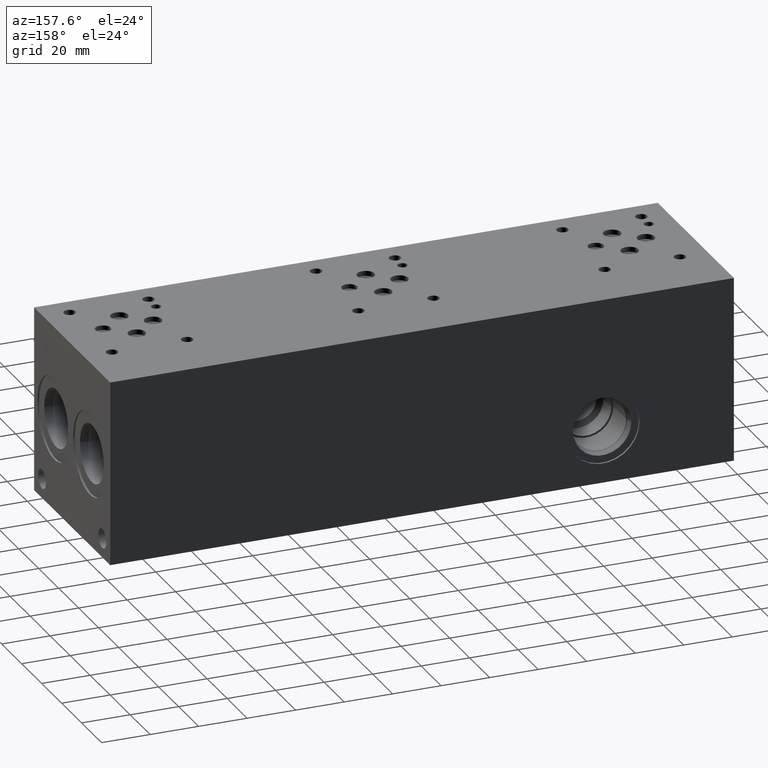
[diagram: clean part render]
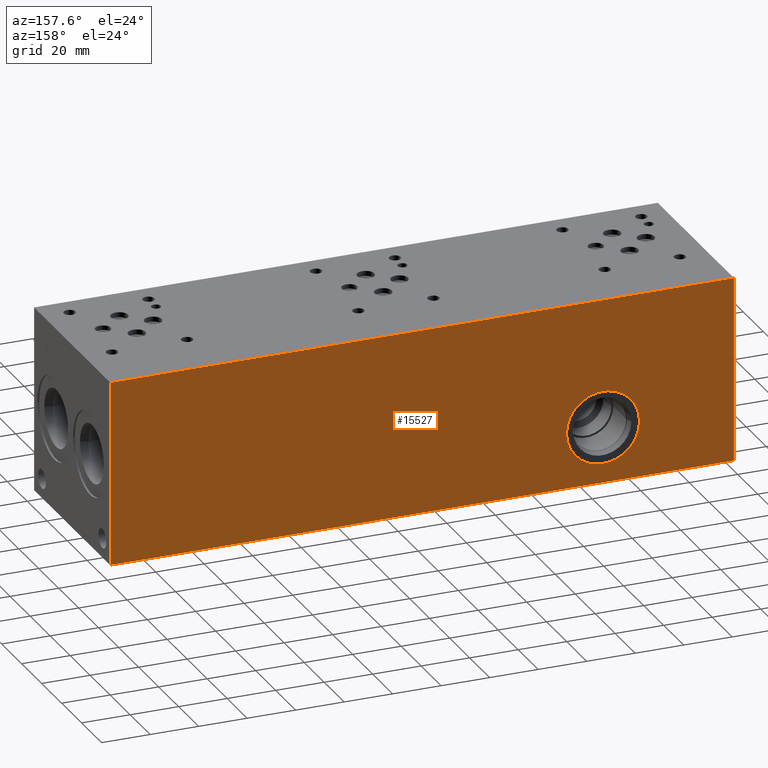
[diagram: same view with one face highlighted and labeled with its STEP entity id]
A machine part, auxiliary view. The second image highlights one B-rep face of the part: STEP entity #15527.
In plain terms, the highlighted planar face has unit normal (0, 1, 0).
Its self-contained STEP definition (entity closure, byte-faithful):
#283=CIRCLE('',#15990,15.08);
#284=CIRCLE('',#15991,15.08);
#767=FACE_BOUND('',#3095,.T.);
#2178=FACE_OUTER_BOUND('',#3094,.T.);
#3094=EDGE_LOOP('',(#13701,#13702,#13703,#13704));
#3095=EDGE_LOOP('',(#13705,#13706));
#4173=LINE('',#25310,#5508);
#4233=LINE('',#25583,#5568);
#4461=LINE('',#27047,#5796);
#4462=LINE('',#27048,#5797);
#5508=VECTOR('',#18344,10.);
#5568=VECTOR('',#18458,10.);
#5796=VECTOR('',#20038,10.);
#5797=VECTOR('',#20039,10.);
#6752=VERTEX_POINT('',#25307);
#6753=VERTEX_POINT('',#25309);
#6810=VERTEX_POINT('',#25579);
#6811=VERTEX_POINT('',#25581);
#6875=VERTEX_POINT('',#25833);
#6876=VERTEX_POINT('',#25834);
#8715=EDGE_CURVE('',#6752,#6753,#4173,.T.);
#8799=EDGE_CURVE('',#6810,#6811,#4233,.T.);
#8888=EDGE_CURVE('',#6875,#6876,#283,.T.);
#8889=EDGE_CURVE('',#6876,#6875,#284,.T.);
#9453=EDGE_CURVE('',#6752,#6810,#4461,.T.);
#9454=EDGE_CURVE('',#6753,#6811,#4462,.T.);
#13701=ORIENTED_EDGE('',*,*,#9453,.T.);
#13702=ORIENTED_EDGE('',*,*,#8799,.T.);
#13703=ORIENTED_EDGE('',*,*,#9454,.F.);
#13704=ORIENTED_EDGE('',*,*,#8715,.F.);
#13705=ORIENTED_EDGE('',*,*,#8888,.T.);
#13706=ORIENTED_EDGE('',*,*,#8889,.T.);
#14187=PLANE('',#16596);
#15527=ADVANCED_FACE('',(#2178,#767),#14187,.T.);
#15990=AXIS2_PLACEMENT_3D('',#25835,#18634,#18635);
#15991=AXIS2_PLACEMENT_3D('',#25836,#18636,#18637);
#16596=AXIS2_PLACEMENT_3D('',#27046,#20036,#20037);
#18344=DIRECTION('',(0.,0.,1.));
#18458=DIRECTION('',(0.,0.,1.));
#18634=DIRECTION('center_axis',(0.,-1.,0.));
#18635=DIRECTION('ref_axis',(1.,0.,0.));
#18636=DIRECTION('center_axis',(0.,-1.,0.));
#18637=DIRECTION('ref_axis',(1.,0.,0.));
#20036=DIRECTION('center_axis',(0.,1.,0.));
#20037=DIRECTION('ref_axis',(-1.,0.,0.));
#20038=DIRECTION('',(-1.,0.,0.));
#20039=DIRECTION('',(-1.,0.,0.));
#25307=CARTESIAN_POINT('',(257.175,76.2,0.));
#25309=CARTESIAN_POINT('',(257.175,76.2,76.2));
#25310=CARTESIAN_POINT('',(257.175,76.2,0.));
#25579=CARTESIAN_POINT('',(0.,76.2,0.));
#25581=CARTESIAN_POINT('',(0.,76.2,76.2));
#25583=CARTESIAN_POINT('',(0.,76.2,0.));
#25833=CARTESIAN_POINT('',(69.055,76.2,23.0124));
#25834=CARTESIAN_POINT('',(38.895,76.2,23.0124));
#25835=CARTESIAN_POINT('Origin',(53.975,76.2,23.0124));
#25836=CARTESIAN_POINT('Origin',(53.975,76.2,23.0124));
#27046=CARTESIAN_POINT('Origin',(257.175,76.2,0.));
#27047=CARTESIAN_POINT('',(257.175,76.2,0.));
#27048=CARTESIAN_POINT('',(257.175,76.2,76.2));